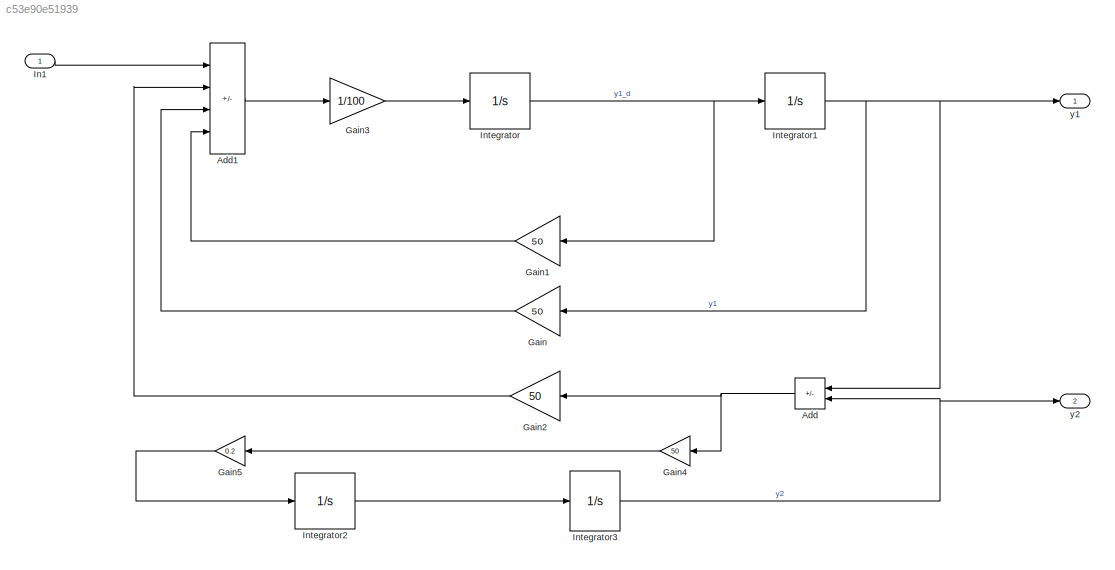
MODEL slx_c53e90e51939
KIND model
CONFIG AbsTol = auto
CONFIG EnableMultiTasking = off
CONFIG FixedStep = auto
CONFIG MaxStep = auto
CONFIG MinStep = auto
CONFIG RelTol = 1e-3
CONFIG SampleTimeConstraint = Unconstrained
CONFIG SolverName = VariableStepAuto
CONFIG StartTime = 0.0
CONFIG StopTime = 50
BLOCK [Sum] Add
  IconShape = rectangular
  Inputs = +-
  NameLocation = top
  Ports = [2, 1]
BLOCK [Sum] Add1
  IconShape = rectangular
  Inputs = +---
  Ports = [4, 1]
BLOCK [Gain] Gain
  Gain = 50
  NameLocation = top
BLOCK [Gain] Gain1
  Gain = 50
  NameLocation = top
BLOCK [Gain] Gain2
  Gain = 50
  NameLocation = top
BLOCK [Gain] Gain3
  Gain = 1/100
BLOCK [Gain] Gain4
  Gain = 50
  NameLocation = top
BLOCK [Gain] Gain5
  Gain = 0.2
  NameLocation = top
BLOCK [Inport] In1
  OutDataTypeStr = double
  PortDimensions = 1
  SampleTime = 0
  SamplingMode = Sample based
  SignalType = real
BLOCK [Integrator] Integrator
  Ports = [1, 1]
BLOCK [Integrator] Integrator1
  Ports = [1, 1]
BLOCK [Integrator] Integrator2
  Ports = [1, 1]
BLOCK [Integrator] Integrator3
  Ports = [1, 1]
BLOCK [Outport] y1
  OutDataTypeStr = double
  PortDimensions = 1
  SampleTime = 0
  SamplingMode = Sample based
  SignalType = real
BLOCK [Outport] y2
  OutDataTypeStr = double
  Port = 2
  PortDimensions = 1
  SampleTime = 0
  SamplingMode = Sample based
  SignalType = real
LINE Add1:1 -> Gain3:1
NET Add:1 -> Gain2:1, Gain4:1
LINE Gain1:1 -> Add1:4
LINE Gain2:1 -> Add1:2
LINE Gain3:1 -> Integrator:1
LINE Gain4:1 -> Gain5:1
LINE Gain5:1 -> Integrator2:1
LINE Gain:1 -> Add1:3
LINE In1:1 -> Add1:1
NET Integrator1:1 -> Add:1, Gain:1, y1:1
LINE Integrator2:1 -> Integrator3:1
NET Integrator3:1 -> Add:2, y2:1
NET Integrator:1 -> Gain1:1, Integrator1:1
note: NET lines group one-source signal fan-out (src -> all destinations, sorted); 1:1 wires keep LINE
